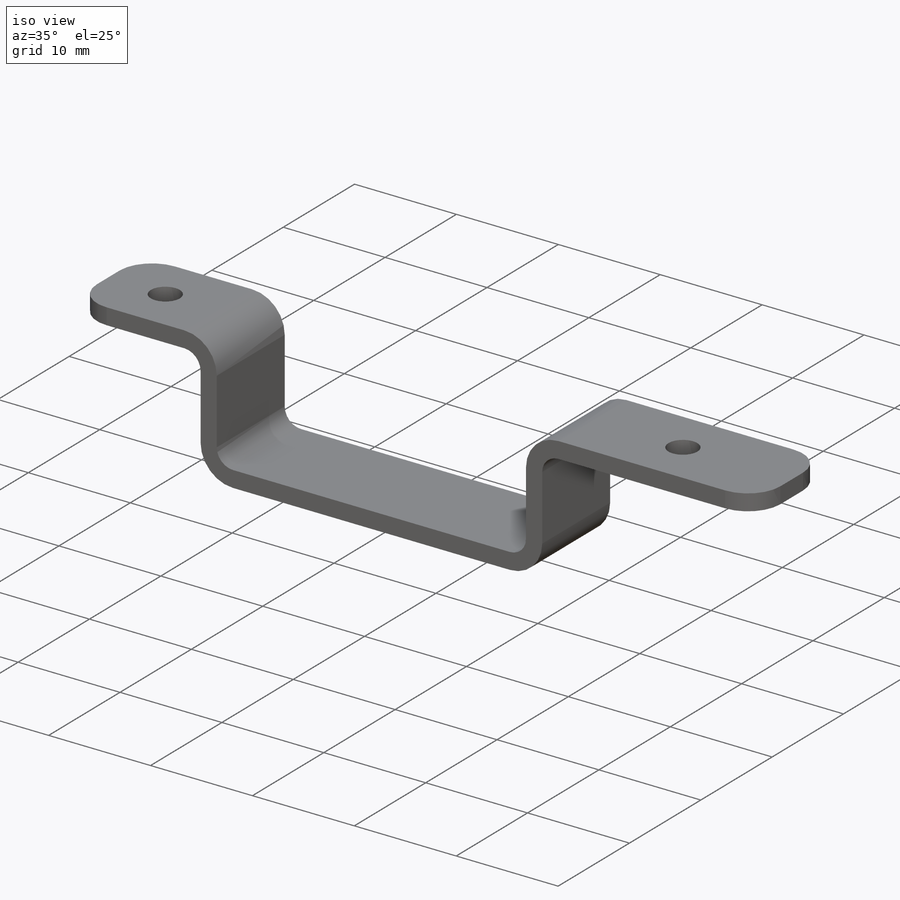
[diagram: iso view]
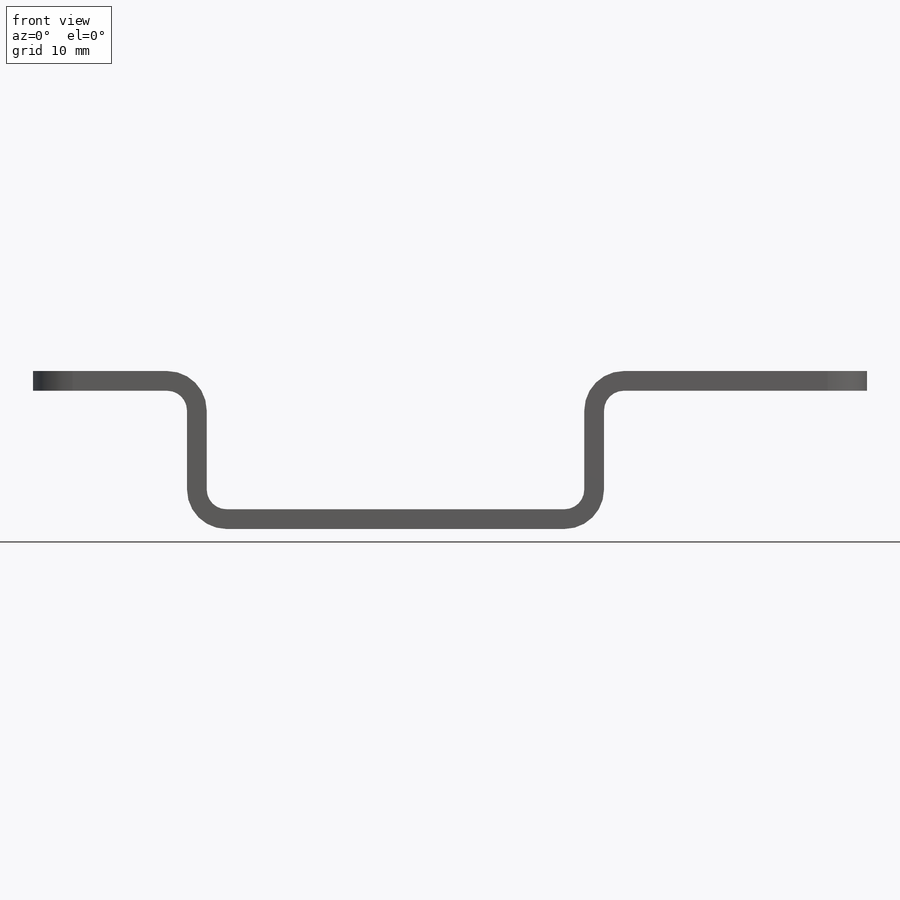
[diagram: front view]
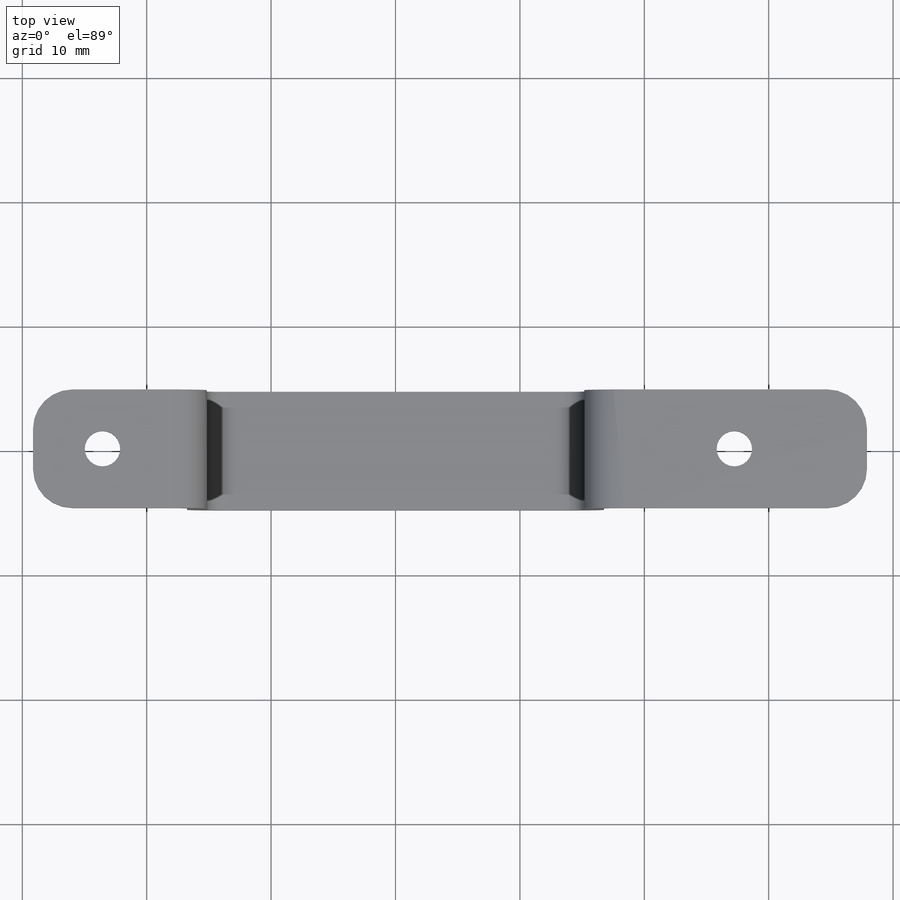
[diagram: top view]
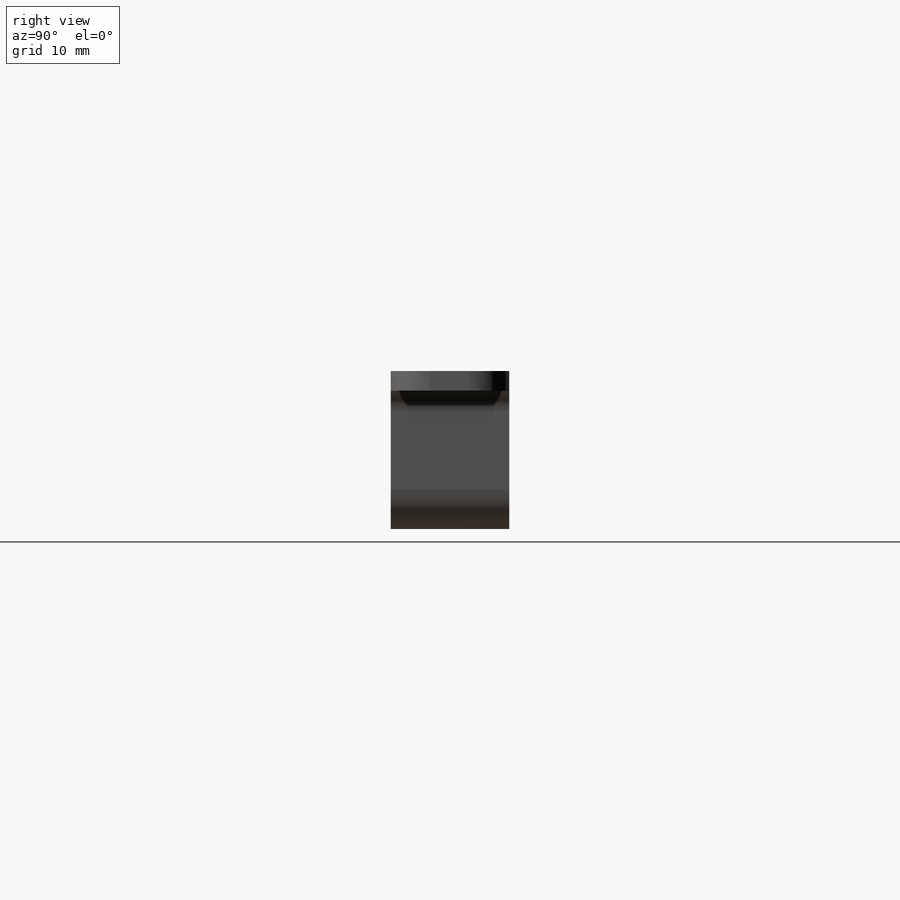
[diagram: right view]
SOLIDWORKS PART (.sldprt)
format: sldprt  version: not decoded by parser v0  size: 233,984 bytes
history: native  units: mm
features: sketch x5, fillet x3, hole x2, material x1, extrude x1 (+11 scaffold rows collapsed)
feature tree (23):
  scaffold x11  (default folders/planes/origin — collapsed)
  material  "Material <not specified>"
  sketch  "Sketch1"  dims[c1.D1=67.056mm c1.D2=13.97mm c1.D3=33.528mm c1.D4=~16.240854mm c1.D5=1.5875mm c1.D6=1.5875mm c1.D7=1.5875mm c1.D8=~17.828354mm c2.D4=12.7mm c2.D8=1.5875mm c2.D2=13.97mm c2.D9=11.1125mm]
  extrude  "Boss-Extrude1"  Depth=9.525mm
  fillet  "Fillet1"  Radius=1.5875mm
  fillet  "Fillet2"  Radius=3.175mm
  fillet  "Fillet3"  Radius=3.175mm
  hole  "Hole1"  Diameter=2.8448mm Depth=1.5875mm
  sketch  "Sketch3"  dims[D1=10.668mm]
  sketch  "Sketch2"  dims[Diameter=2.8448mm Depth=1.5875mm]
  hole  "Hole2"  Diameter=2.8448mm Depth=1.5875mm
  sketch  "Sketch5"  dims[D1=5.588mm]
  sketch  "Sketch4"  dims[Diameter=2.8448mm Depth=1.5875mm]
decode coverage: 11 of 11 modeling features carry decoded parameters
note: ~ marks probable driven/reference dimensions
note: suppression state not decoded; provenance and decode notes live in map.json
